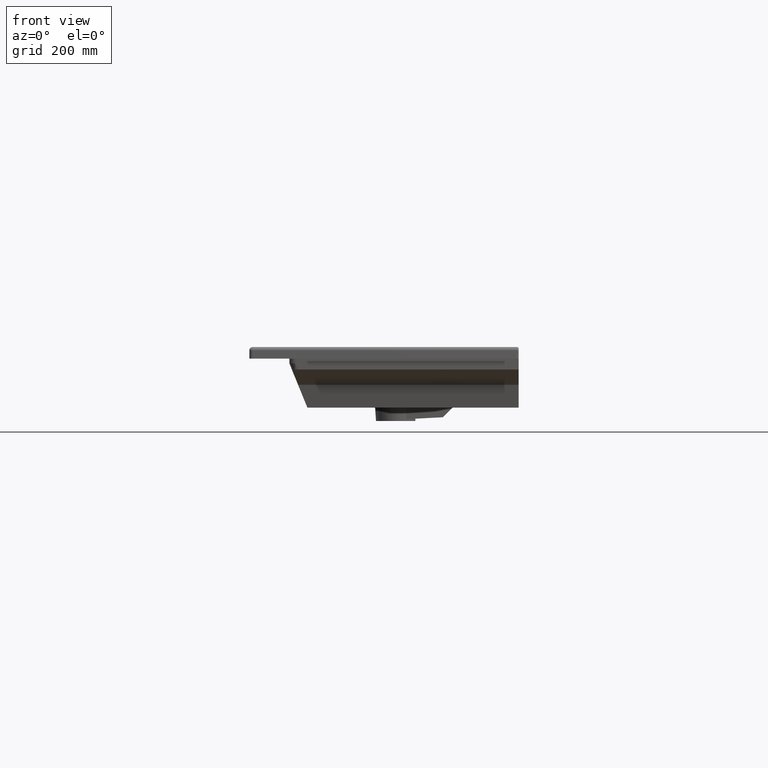
[diagram: clean part render]
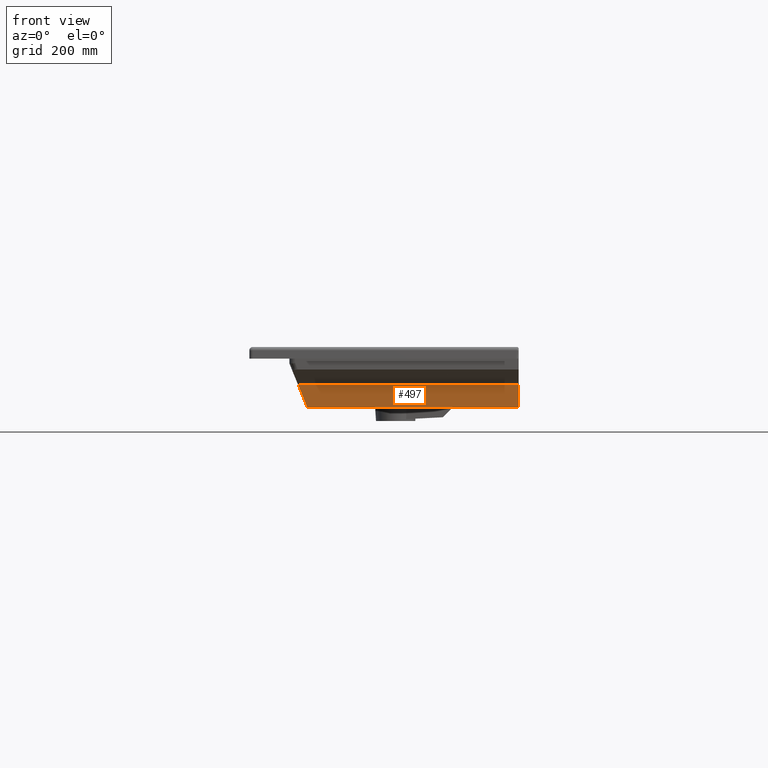
[diagram: same view with one face highlighted and labeled with its STEP entity id]
A machine part, front view. The second image highlights one B-rep face of the part: STEP entity #497.
In plain terms, the highlighted planar face has unit normal (0, 0.9659, 0.2588).
Its self-contained STEP definition (entity closure, byte-faithful):
#346=FACE_OUTER_BOUND('',#768,.T.);
#497=ADVANCED_FACE('',(#346),#604,.F.);
#604=PLANE('',#2705);
#768=EDGE_LOOP('',(#1527,#1528,#1529,#1530));
#945=B_SPLINE_CURVE_WITH_KNOTS('',3,(#4817,#4818,#4819,#4820,#4821,#4822,
#4823),.UNSPECIFIED.,.F.,.F.,(4,3,4),(0.,0.500006351623453,1.),
 .UNSPECIFIED.);
#963=B_SPLINE_CURVE_WITH_KNOTS('',3,(#5011,#5012,#5013,#5014,#5015,#5016,
#5017),.UNSPECIFIED.,.F.,.F.,(4,3,4),(0.,0.588356995269245,1.),
 .UNSPECIFIED.);
#1008=B_SPLINE_CURVE_WITH_KNOTS('',3,(#6293,#6294,#6295,#6296,#6297,#6298,
#6299),.UNSPECIFIED.,.F.,.F.,(4,3,4),(0.,0.0101007901549005,1.),
 .UNSPECIFIED.);
#1527=ORIENTED_EDGE('',*,*,#2236,.T.);
#1528=ORIENTED_EDGE('',*,*,#2343,.T.);
#1529=ORIENTED_EDGE('',*,*,#2258,.F.);
#1530=ORIENTED_EDGE('',*,*,#2209,.F.);
#1933=VERTEX_POINT('',#4654);
#1934=VERTEX_POINT('',#4656);
#1955=VERTEX_POINT('',#4816);
#1966=VERTEX_POINT('',#4978);
#2209=EDGE_CURVE('',#1933,#1934,#2466,.T.);
#2236=EDGE_CURVE('',#1933,#1955,#945,.T.);
#2258=EDGE_CURVE('',#1934,#1966,#963,.T.);
#2343=EDGE_CURVE('',#1955,#1966,#1008,.T.);
#2466=LINE('',#4655,#2586);
#2586=VECTOR('',#2897,1.);
#2705=AXIS2_PLACEMENT_3D('',#6300,#3015,#3016);
#2897=DIRECTION('',(-0.999999999390827,3.27116563270699E-16,3.49048234856292E-5));
#3015=DIRECTION('',(9.03403308984184E-6,0.965925826246822,0.258819045102521));
#3016=DIRECTION('',(0.,-0.258819045113082,0.965925826286238));
#4654=CARTESIAN_POINT('',(241.136432431899,-432.650048785026,-109.003096626033));
#4655=CARTESIAN_POINT('',(-103.926207120492,-432.650048785026,-108.9910522755));
#4656=CARTESIAN_POINT('',(-138.30556280104,-432.650048785025,-108.989852270158));
#4816=CARTESIAN_POINT('',(241.13499205821,-443.662951140867,-67.9023854467596));
#4817=CARTESIAN_POINT('',(241.136432431899,-432.650048785026,-109.003096626033));
#4818=CARTESIAN_POINT('',(241.136192366568,-434.485555827602,-102.152891077407));
#4819=CARTESIAN_POINT('',(241.135952301237,-436.321062870179,-95.302685528781));
#4820=CARTESIAN_POINT('',(241.135712235906,-438.156569912755,-88.4524799801551));
#4821=CARTESIAN_POINT('',(241.135472176674,-439.992030322126,-81.6024484690233));
#4822=CARTESIAN_POINT('',(241.135232117442,-441.827490731496,-74.7524169578914));
#4823=CARTESIAN_POINT('',(241.13499205821,-443.662951140867,-67.9023854467596));
#4978=CARTESIAN_POINT('',(-155.063229448867,-443.662951139568,-67.8885562226096));
#5011=CARTESIAN_POINT('',(-138.30556280104,-432.650048785025,-108.989852270158));
#5012=CARTESIAN_POINT('',(-141.592059552301,-434.809888169384,-100.929107237308));
#5013=CARTESIAN_POINT('',(-144.878556546342,-436.969727528993,-92.8683622968118));
#5014=CARTESIAN_POINT('',(-148.16505329761,-439.129566913351,-84.8076172639644));
#5015=CARTESIAN_POINT('',(-150.464445348027,-440.640694988757,-79.1679302501789));
#5016=CARTESIAN_POINT('',(-152.763837398447,-442.151823064163,-73.5282432363939));
#5017=CARTESIAN_POINT('',(-155.063229448867,-443.662951139568,-67.8885562226096));
#6293=CARTESIAN_POINT('',(241.13499205821,-443.662951147055,-67.9023854448676));
#6294=CARTESIAN_POINT('',(239.801020359813,-443.662951147055,-67.9023388828121));
#6295=CARTESIAN_POINT('',(238.467048661416,-443.662951147055,-67.9022923207566));
#6296=CARTESIAN_POINT('',(237.133076963019,-443.662951147055,-67.9022457587011));
#6297=CARTESIAN_POINT('',(106.400974825613,-443.662951147055,-67.8976825768837));
#6298=CARTESIAN_POINT('',(-24.3311273116821,-443.662951118561,-67.8931194152132));
#6299=CARTESIAN_POINT('',(-155.063229448866,-443.662951144427,-67.8885562211241));
#6300=CARTESIAN_POINT('',(-103.926252290657,-432.303297013983,-110.285147501013));